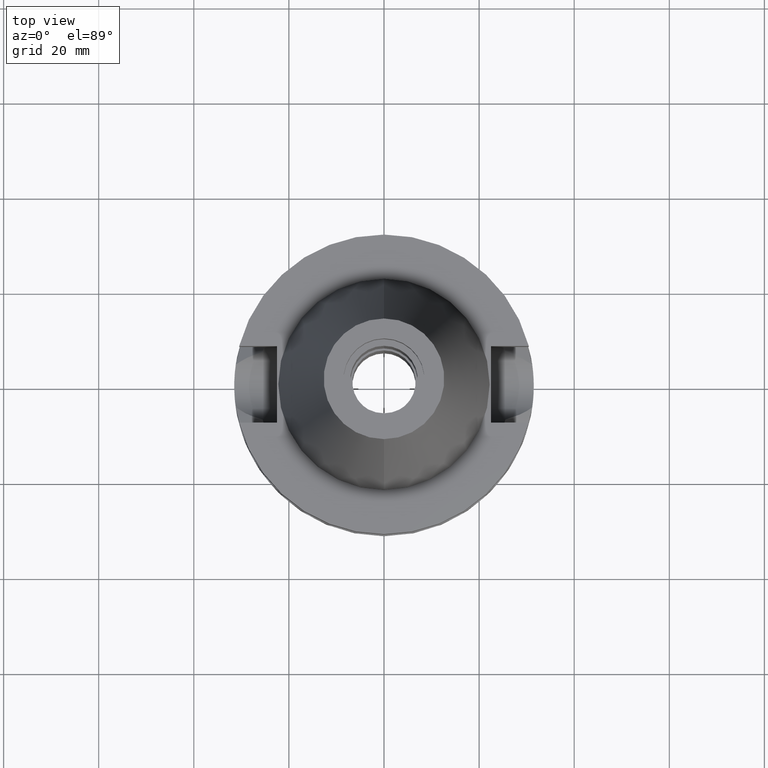
[diagram: clean part render]
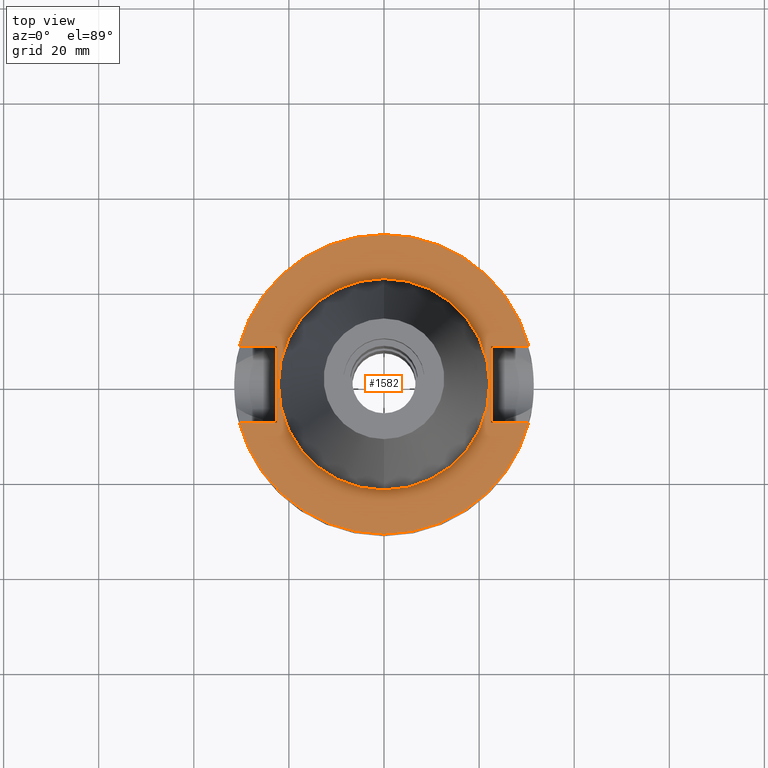
[diagram: same view with one face highlighted and labeled with its STEP entity id]
A machine part, top view. The second image highlights one B-rep face of the part: STEP entity #1582.
In plain terms, the highlighted planar face has unit normal (0, 0, -1).
Its self-contained STEP definition (entity closure, byte-faithful):
#14 = CIRCLE ( 'NONE', #1725, 22.22500000000000142 ) ;
#83 = CARTESIAN_POINT ( 'NONE',  ( 22.50000000000000000, -8.050000000000000711, -1.000000000000000000 ) ) ;
#88 = CARTESIAN_POINT ( 'NONE',  ( -22.50000000000000000, -8.050000000000000711, -1.000000000000000000 ) ) ;
#144 = DIRECTION ( 'NONE',  ( 0.0000000000000000000, -1.000000000000000000, 0.0000000000000000000 ) ) ;
#155 = VERTEX_POINT ( 'NONE', #2718 ) ;
#169 = VERTEX_POINT ( 'NONE', #88 ) ;
#173 = LINE ( 'NONE', #880, #2232 ) ;
#213 = DIRECTION ( 'NONE',  ( 0.0000000000000000000, 1.000000000000000000, 0.0000000000000000000 ) ) ;
#218 = ORIENTED_EDGE ( 'NONE', *, *, #1710, .T. ) ;
#262 = AXIS2_PLACEMENT_3D ( 'NONE', #1060, #1584, #356 ) ;
#293 = VECTOR ( 'NONE', #339, 1000.000000000000000 ) ;
#339 = DIRECTION ( 'NONE',  ( -1.000000000000000000, -3.550916904668000126E-14, 0.0000000000000000000 ) ) ;
#341 = EDGE_CURVE ( 'NONE', #2199, #1763, #2111, .T. ) ;
#356 = DIRECTION ( 'NONE',  ( 0.0000000000000000000, -1.000000000000000000, 0.0000000000000000000 ) ) ;
#377 = LINE ( 'NONE', #1977, #460 ) ;
#388 = CARTESIAN_POINT ( 'NONE',  ( -22.50000000000000000, 8.050000000000000711, -1.000000000000000000 ) ) ;
#460 = VECTOR ( 'NONE', #2983, 1000.000000000000000 ) ;
#514 = CARTESIAN_POINT ( 'NONE',  ( 22.50000000000000000, 8.050000000000000711, -1.000000000000000000 ) ) ;
#598 = EDGE_LOOP ( 'NONE', ( #2948, #2754, #735, #1950, #218, #1895, #1975, #2296 ) ) ;
#600 = FACE_BOUND ( 'NONE', #3009, .T. ) ;
#685 = AXIS2_PLACEMENT_3D ( 'NONE', #2159, #1334, #2313 ) ;
#730 = AXIS2_PLACEMENT_3D ( 'NONE', #2281, #2045, #144 ) ;
#735 = ORIENTED_EDGE ( 'NONE', *, *, #1924, .F. ) ;
#831 = FACE_OUTER_BOUND ( 'NONE', #598, .T. ) ;
#874 = VECTOR ( 'NONE', #1863, 1000.000000000000000 ) ;
#876 = DIRECTION ( 'NONE',  ( 1.000000000000000000, -3.506251283225999947E-14, 0.0000000000000000000 ) ) ;
#880 = CARTESIAN_POINT ( 'NONE',  ( -22.50000000000000000, -8.050000000000000711, -1.000000000000000000 ) ) ;
#907 = VERTEX_POINT ( 'NONE', #1215 ) ;
#911 = CARTESIAN_POINT ( 'NONE',  ( 22.50000000000000000, 8.050000000000000711, -1.000000000000000000 ) ) ;
#1060 = CARTESIAN_POINT ( 'NONE',  ( 0.0000000000000000000, 1.212400331155999925E-14, -1.000000000000000000 ) ) ;
#1109 = LINE ( 'NONE', #3024, #1636 ) ;
#1145 = CARTESIAN_POINT ( 'NONE',  ( 0.0000000000000000000, -22.22500000000000142, -1.000000000000000000 ) ) ;
#1215 = CARTESIAN_POINT ( 'NONE',  ( -30.45402272279000044, 8.050000000000000711, -1.000000000000000000 ) ) ;
#1223 = VERTEX_POINT ( 'NONE', #2129 ) ;
#1246 = EDGE_CURVE ( 'NONE', #2912, #1223, #2730, .T. ) ;
#1334 = DIRECTION ( 'NONE',  ( 0.0000000000000000000, 0.0000000000000000000, 1.000000000000000000 ) ) ;
#1343 = DIRECTION ( 'NONE',  ( 0.0000000000000000000, 0.0000000000000000000, 1.000000000000000000 ) ) ;
#1354 = CARTESIAN_POINT ( 'NONE',  ( -22.50000000000000000, -8.050000000000000711, -1.000000000000000000 ) ) ;
#1378 = DIRECTION ( 'NONE',  ( -1.000000000000000000, 3.550916904668000126E-14, 0.0000000000000000000 ) ) ;
#1444 = VERTEX_POINT ( 'NONE', #1938 ) ;
#1508 = EDGE_CURVE ( 'NONE', #1223, #2912, #14, .T. ) ;
#1521 = LINE ( 'NONE', #388, #293 ) ;
#1522 = AXIS2_PLACEMENT_3D ( 'NONE', #1923, #2186, #1951 ) ;
#1570 = CARTESIAN_POINT ( 'NONE',  ( 0.0000000000000000000, 2.097758734598999898E-14, -1.000000000000000000 ) ) ;
#1582 = ADVANCED_FACE ( 'NONE', ( #831, #600 ), #2942, .F. ) ;
#1584 = DIRECTION ( 'NONE',  ( 0.0000000000000000000, 0.0000000000000000000, -1.000000000000000000 ) ) ;
#1636 = VECTOR ( 'NONE', #876, 1000.000000000000000 ) ;
#1710 = EDGE_CURVE ( 'NONE', #2199, #2138, #1109, .T. ) ;
#1725 = AXIS2_PLACEMENT_3D ( 'NONE', #1570, #1343, #2530 ) ;
#1763 = VERTEX_POINT ( 'NONE', #83 ) ;
#1863 = DIRECTION ( 'NONE',  ( 0.0000000000000000000, -1.000000000000000000, 0.0000000000000000000 ) ) ;
#1869 = EDGE_CURVE ( 'NONE', #1444, #155, #2343, .T. ) ;
#1895 = ORIENTED_EDGE ( 'NONE', *, *, #3059, .F. ) ;
#1910 = ORIENTED_EDGE ( 'NONE', *, *, #1508, .F. ) ;
#1923 = CARTESIAN_POINT ( 'NONE',  ( 0.0000000000000000000, 2.097758734598999898E-14, -1.000000000000000000 ) ) ;
#1924 = EDGE_CURVE ( 'NONE', #1763, #1444, #377, .T. ) ;
#1938 = CARTESIAN_POINT ( 'NONE',  ( 30.45402272279000044, -8.050000000000000711, -1.000000000000000000 ) ) ;
#1950 = ORIENTED_EDGE ( 'NONE', *, *, #341, .F. ) ;
#1951 = DIRECTION ( 'NONE',  ( 0.0000000000000000000, 1.000000000000000000, 0.0000000000000000000 ) ) ;
#1975 = ORIENTED_EDGE ( 'NONE', *, *, #2374, .F. ) ;
#1977 = CARTESIAN_POINT ( 'NONE',  ( 22.50000000000000000, -8.050000000000000711, -1.000000000000000000 ) ) ;
#2037 = VERTEX_POINT ( 'NONE', #2361 ) ;
#2045 = DIRECTION ( 'NONE',  ( 0.0000000000000000000, 0.0000000000000000000, -1.000000000000000000 ) ) ;
#2111 = LINE ( 'NONE', #911, #874 ) ;
#2117 = CARTESIAN_POINT ( 'NONE',  ( 30.45402272279000044, 8.050000000000000711, -1.000000000000000000 ) ) ;
#2129 = CARTESIAN_POINT ( 'NONE',  ( 0.0000000000000000000, 22.22500000000000142, -1.000000000000000000 ) ) ;
#2138 = VERTEX_POINT ( 'NONE', #2117 ) ;
#2159 = CARTESIAN_POINT ( 'NONE',  ( 0.0000000000000000000, 2.097758734598999898E-14, -1.000000000000000000 ) ) ;
#2186 = DIRECTION ( 'NONE',  ( 0.0000000000000000000, 0.0000000000000000000, -1.000000000000000000 ) ) ;
#2199 = VERTEX_POINT ( 'NONE', #514 ) ;
#2212 = ORIENTED_EDGE ( 'NONE', *, *, #1246, .F. ) ;
#2232 = VECTOR ( 'NONE', #1378, 1000.000000000000000 ) ;
#2281 = CARTESIAN_POINT ( 'NONE',  ( 0.0000000000000000000, 2.097758734598999898E-14, -1.000000000000000000 ) ) ;
#2296 = ORIENTED_EDGE ( 'NONE', *, *, #2773, .F. ) ;
#2313 = DIRECTION ( 'NONE',  ( 0.0000000000000000000, -1.000000000000000000, 0.0000000000000000000 ) ) ;
#2334 = LINE ( 'NONE', #1354, #2483 ) ;
#2343 = CIRCLE ( 'NONE', #730, 31.50000000000000000 ) ;
#2361 = CARTESIAN_POINT ( 'NONE',  ( -22.50000000000000000, 8.050000000000000711, -1.000000000000000000 ) ) ;
#2374 = EDGE_CURVE ( 'NONE', #2037, #907, #1521, .T. ) ;
#2483 = VECTOR ( 'NONE', #213, 1000.000000000000000 ) ;
#2530 = DIRECTION ( 'NONE',  ( 0.0000000000000000000, 1.000000000000000000, 0.0000000000000000000 ) ) ;
#2640 = EDGE_CURVE ( 'NONE', #169, #155, #173, .T. ) ;
#2718 = CARTESIAN_POINT ( 'NONE',  ( -30.45402272279000044, -8.050000000000000711, -1.000000000000000000 ) ) ;
#2730 = CIRCLE ( 'NONE', #685, 22.22500000000000142 ) ;
#2754 = ORIENTED_EDGE ( 'NONE', *, *, #1869, .F. ) ;
#2773 = EDGE_CURVE ( 'NONE', #169, #2037, #2334, .T. ) ;
#2878 = CIRCLE ( 'NONE', #1522, 31.50000000000000000 ) ;
#2912 = VERTEX_POINT ( 'NONE', #1145 ) ;
#2942 = PLANE ( 'NONE',  #262 ) ;
#2948 = ORIENTED_EDGE ( 'NONE', *, *, #2640, .T. ) ;
#2983 = DIRECTION ( 'NONE',  ( 1.000000000000000000, 3.573249715389999860E-14, 0.0000000000000000000 ) ) ;
#3009 = EDGE_LOOP ( 'NONE', ( #1910, #2212 ) ) ;
#3024 = CARTESIAN_POINT ( 'NONE',  ( 22.50000000000000000, 8.050000000000000711, -1.000000000000000000 ) ) ;
#3059 = EDGE_CURVE ( 'NONE', #907, #2138, #2878, .T. ) ;